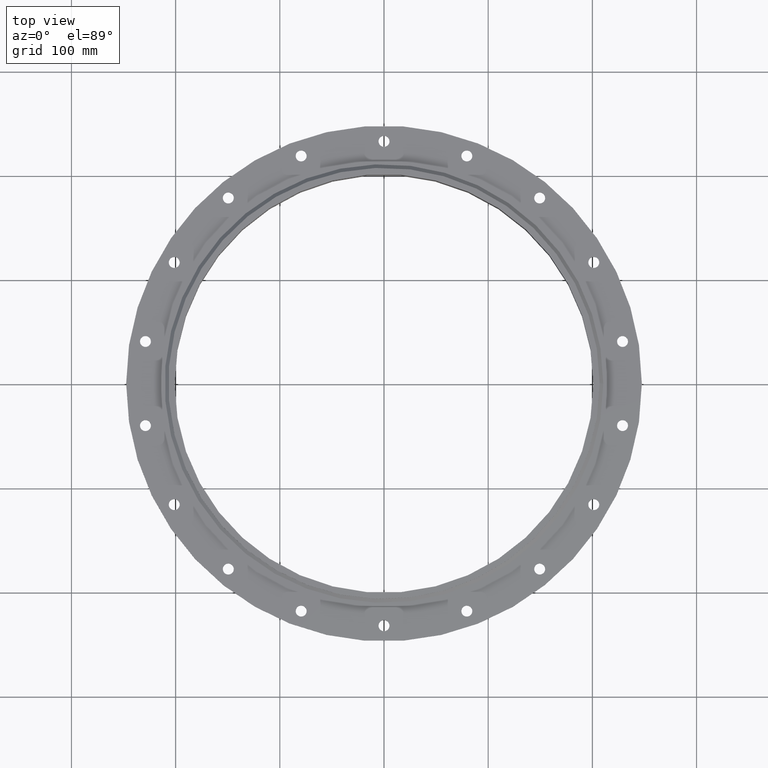
[diagram: clean part render]
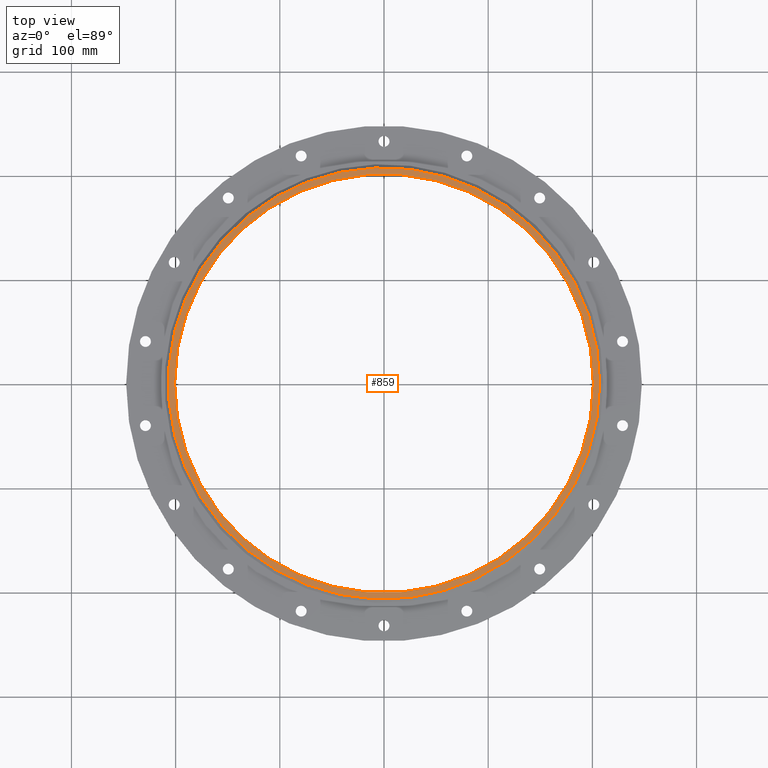
[diagram: same view with one face highlighted and labeled with its STEP entity id]
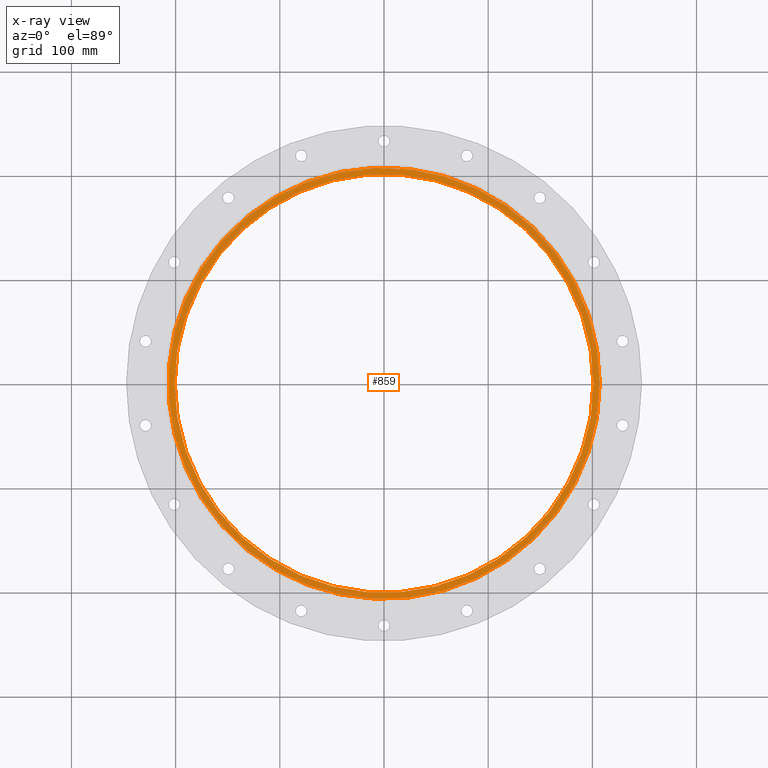
[diagram: x-ray of the same camera — body ghosted, the highlighted face saturated]
A machine part, top view. The second image highlights one B-rep face of the part: STEP entity #859.
The next image is the same camera in x-ray: the body ghosted, the highlighted face saturated — about 0% of this face is hidden behind the body in this view.
In plain terms, the highlighted planar face has unit normal (0, 0, 1).
Its self-contained STEP definition (entity closure, byte-faithful):
#679=CARTESIAN_POINT('',(207.00000000000011,2.535019E-014,0.0));
#680=VERTEX_POINT('',#679);
#681=CARTESIAN_POINT('',(0.0,0.0,0.0));
#682=DIRECTION('',(0.0,0.0,-1.0));
#683=DIRECTION('',(-1.0,0.0,0.0));
#684=AXIS2_PLACEMENT_3D('',#681,#682,#683);
#685=CIRCLE('',#684,207.00000000000011);
#686=EDGE_CURVE('',#680,#680,#685,.T.);
#804=CARTESIAN_POINT('',(201.0,0.0,0.0));
#805=VERTEX_POINT('',#804);
#806=CARTESIAN_POINT('',(0.0,0.0,0.0));
#807=DIRECTION('',(0.0,0.0,-1.0));
#808=DIRECTION('',(1.0,0.0,0.0));
#809=AXIS2_PLACEMENT_3D('',#806,#807,#808);
#810=CIRCLE('',#809,201.0);
#811=EDGE_CURVE('',#805,#805,#810,.T.);
#848=CARTESIAN_POINT('',(-1.126605E-014,4.576765E-015,0.0));
#849=DIRECTION('',(0.0,0.0,1.0));
#850=DIRECTION('',(1.0,0.0,0.0));
#851=AXIS2_PLACEMENT_3D('',#848,#849,#850);
#852=PLANE('',#851);
#853=ORIENTED_EDGE('',*,*,#686,.F.);
#854=EDGE_LOOP('',(#853));
#855=FACE_OUTER_BOUND('',#854,.T.);
#856=ORIENTED_EDGE('',*,*,#811,.T.);
#857=EDGE_LOOP('',(#856));
#858=FACE_BOUND('',#857,.T.);
#859=ADVANCED_FACE('',(#855,#858),#852,.T.);